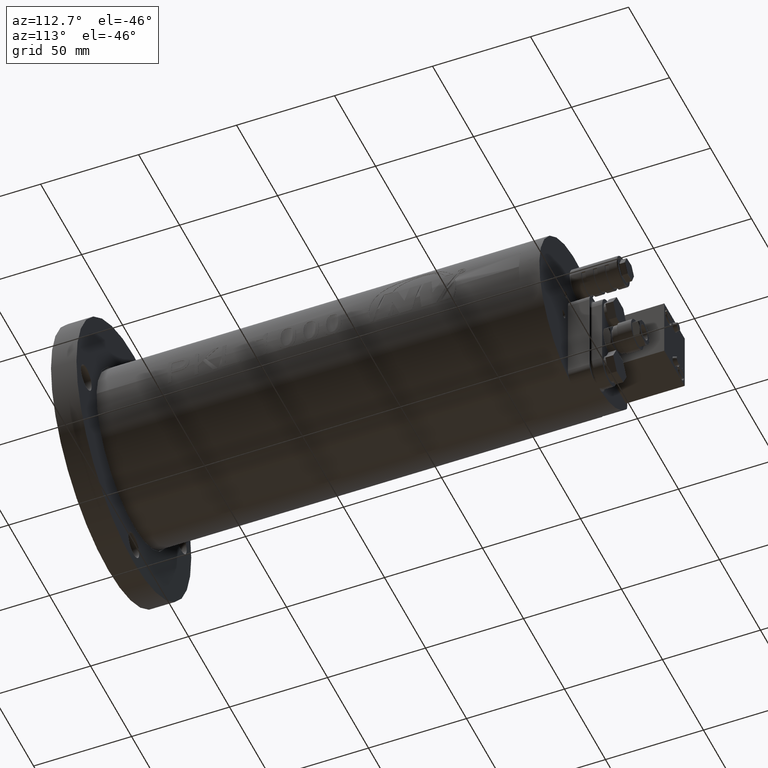
[diagram: clean part render]
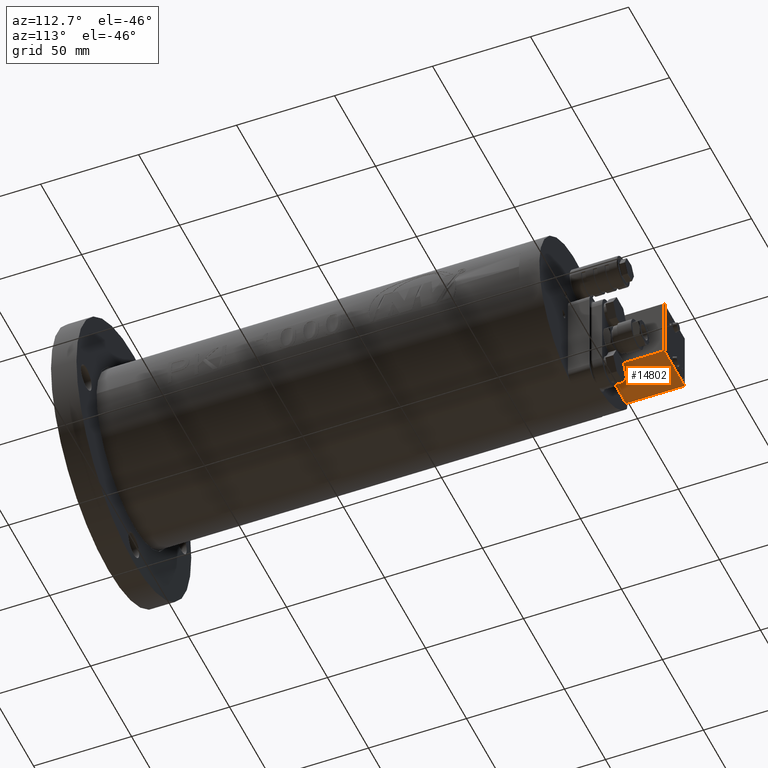
[diagram: same view with one face highlighted and labeled with its STEP entity id]
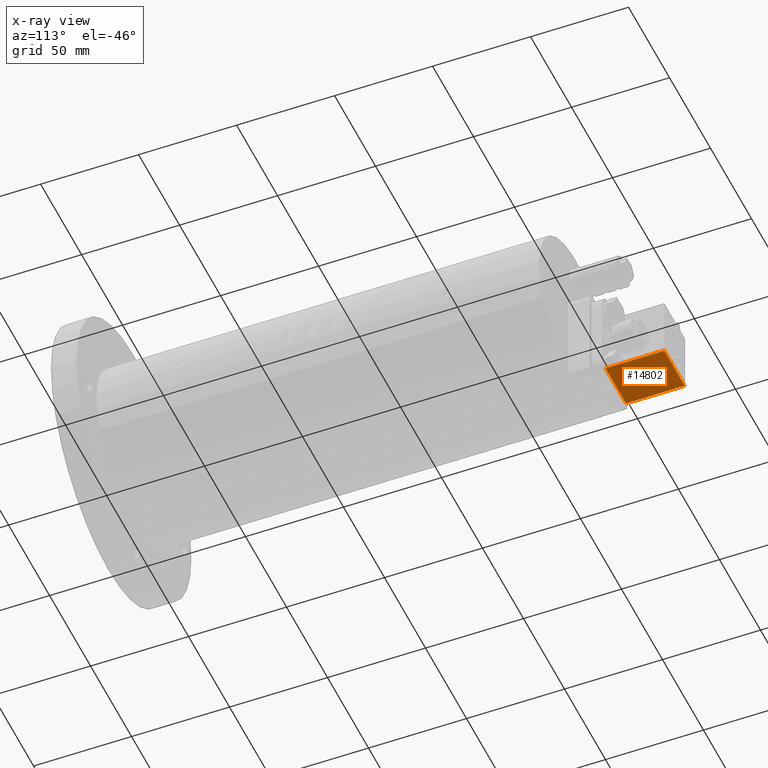
[diagram: x-ray of the same camera — body ghosted, the highlighted face saturated]
A machine part, auxiliary view. The second image highlights one B-rep face of the part: STEP entity #14802.
The next image is the same camera in x-ray: the body ghosted, the highlighted face saturated — about 0% of this face is hidden behind the body in this view.
In plain terms, the highlighted planar face has unit normal (0, 0, 1).
Its self-contained STEP definition (entity closure, byte-faithful):
#1966 = CARTESIAN_POINT ( 'NONE',  ( -34.91329307649820600, 229.5000000000000000, -23.41329307649942100 ) ) ;
#4037 = DIRECTION ( 'NONE',  ( -6.768147145933096200E-017, -1.000000000000000000, 6.465604180077062700E-016 ) ) ;
#4578 = VERTEX_POINT ( 'NONE', #20770 ) ;
#4927 = DIRECTION ( 'NONE',  ( -6.768147145933096200E-017, -1.000000000000000000, 6.465604180077062700E-016 ) ) ;
#5370 = VERTEX_POINT ( 'NONE', #1966 ) ;
#5489 = PLANE ( 'NONE',  #24808 ) ;
#6906 = VECTOR ( 'NONE', #29691, 1000.000000000000000 ) ;
#6938 = CARTESIAN_POINT ( 'NONE',  ( -34.91329307649821300, 259.5000000000000600, -23.41329307649943900 ) ) ;
#8279 = VECTOR ( 'NONE', #4037, 1000.000000000000000 ) ;
#8588 = EDGE_CURVE ( 'NONE', #9574, #4578, #39483, .T. ) ;
#9574 = VERTEX_POINT ( 'NONE', #16473 ) ;
#11829 = CARTESIAN_POINT ( 'NONE',  ( -9.913293076498204600, 259.5000000000000600, -23.41329307649944600 ) ) ;
#12094 = LINE ( 'NONE', #6938, #6906 ) ;
#13852 = LINE ( 'NONE', #33863, #39169 ) ;
#14802 = ADVANCED_FACE ( 'NONE', ( #36156 ), #5489, .F. ) ;
#15127 = DIRECTION ( 'NONE',  ( 1.000000000000000000, -6.768147145933128300E-017, -8.326672684688677000E-016 ) ) ;
#16473 = CARTESIAN_POINT ( 'NONE',  ( -9.913293076498204600, 259.5000000000000600, -23.41329307649944600 ) ) ;
#17919 = EDGE_LOOP ( 'NONE', ( #30707, #36062, #19403, #29242 ) ) ;
#18672 = EDGE_CURVE ( 'NONE', #4578, #5370, #13852, .T. ) ;
#19403 = ORIENTED_EDGE ( 'NONE', *, *, #36548, .F. ) ;
#20770 = CARTESIAN_POINT ( 'NONE',  ( -9.913293076498201000, 229.5000000000000000, -23.41329307649937900 ) ) ;
#21488 = DIRECTION ( 'NONE',  ( 8.326672684688677000E-016, 6.465604180077061700E-016, 1.000000000000000000 ) ) ;
#24063 = DIRECTION ( 'NONE',  ( -1.000000000000000000, 6.768147145933129500E-017, 8.326672684688678000E-016 ) ) ;
#24808 = AXIS2_PLACEMENT_3D ( 'NONE', #25223, #21488, #15127 ) ;
#25223 = CARTESIAN_POINT ( 'NONE',  ( -34.91329307649821300, 259.5000000000000600, -23.41329307649943900 ) ) ;
#29242 = ORIENTED_EDGE ( 'NONE', *, *, #8588, .T. ) ;
#29691 = DIRECTION ( 'NONE',  ( -1.000000000000000000, 6.768147145933129500E-017, 8.326672684688678000E-016 ) ) ;
#30707 = ORIENTED_EDGE ( 'NONE', *, *, #18672, .T. ) ;
#32781 = VECTOR ( 'NONE', #4927, 1000.000000000000000 ) ;
#33121 = VERTEX_POINT ( 'NONE', #39152 ) ;
#33863 = CARTESIAN_POINT ( 'NONE',  ( -34.91329307649820600, 229.5000000000000000, -23.41329307649942100 ) ) ;
#34035 = LINE ( 'NONE', #34130, #8279 ) ;
#34130 = CARTESIAN_POINT ( 'NONE',  ( -34.91329307649821300, 259.5000000000000600, -23.41329307649943900 ) ) ;
#36062 = ORIENTED_EDGE ( 'NONE', *, *, #41683, .F. ) ;
#36156 = FACE_OUTER_BOUND ( 'NONE', #17919, .T. ) ;
#36548 = EDGE_CURVE ( 'NONE', #9574, #33121, #12094, .T. ) ;
#39152 = CARTESIAN_POINT ( 'NONE',  ( -34.91329307649821300, 259.5000000000000600, -23.41329307649943900 ) ) ;
#39169 = VECTOR ( 'NONE', #24063, 1000.000000000000000 ) ;
#39483 = LINE ( 'NONE', #11829, #32781 ) ;
#41683 = EDGE_CURVE ( 'NONE', #33121, #5370, #34035, .T. ) ;